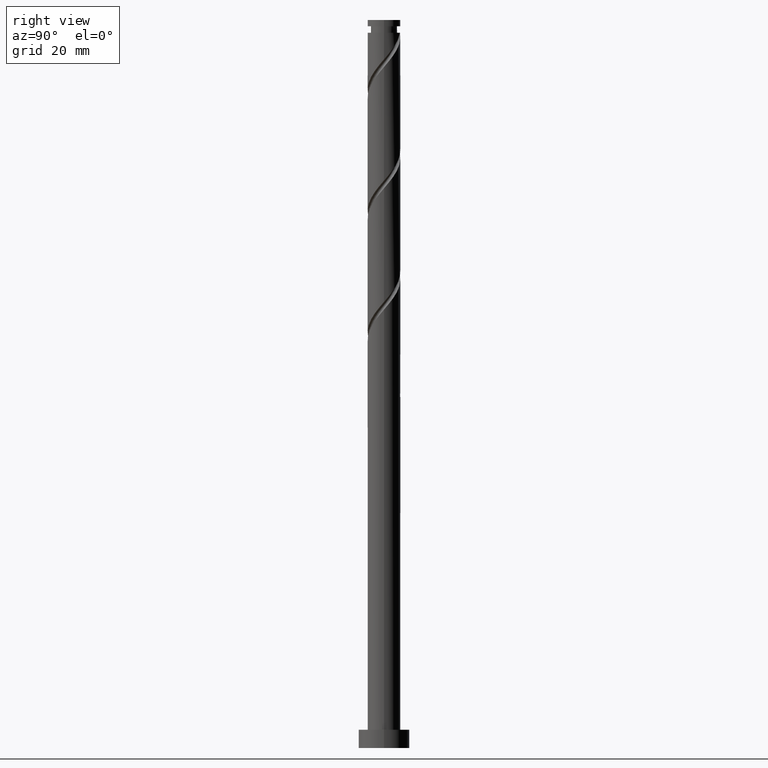
[diagram: clean part render]
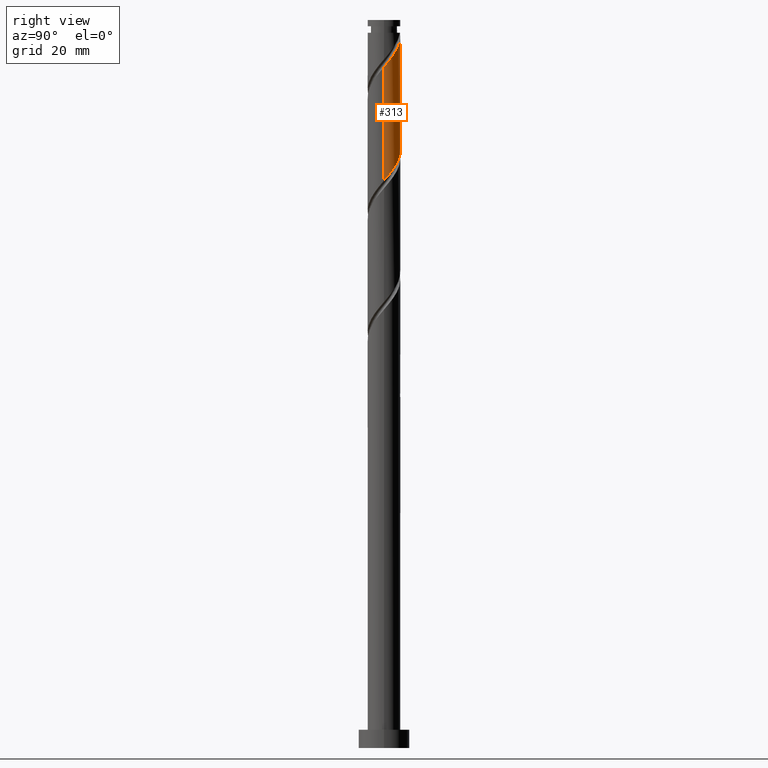
[diagram: same view with one face highlighted and labeled with its STEP entity id]
A machine part, right view. The second image highlights one B-rep face of the part: STEP entity #313.
In plain terms, the highlighted cylindrical surface (edge-blend (fillet) strip) has radius 4.5 mm, axis along (-0, -0, -1).
Its self-contained STEP definition (entity closure, byte-faithful):
#8 = CARTESIAN_POINT ( 'NONE',  ( 4.500000000000000000, 6.474988664087530280E-15, 155.8976470293426360 ) ) ;
#12 = VERTEX_POINT ( 'NONE', #1205 ) ;
#24 = CARTESIAN_POINT ( 'NONE',  ( -4.499999999999988454, 0.000000000000000000, 196.5007470407992685 ) ) ;
#26 = CARTESIAN_POINT ( 'NONE',  ( 4.078721232902287497, 1.991234240796970090, 158.3063025963548114 ) ) ;
#33 = CARTESIAN_POINT ( 'NONE',  ( -4.500000000000001776, -2.841219044287830793E-15, 172.5643136960093500 ) ) ;
#38 = CARTESIAN_POINT ( 'NONE',  ( 2.980515957282635853, 3.371427683991394364, 160.3896359296881258 ) ) ;
#59 = CARTESIAN_POINT ( 'NONE',  ( -4.027963365409944707, 2.006367645003127365, 170.1118581519103827 ) ) ;
#74 = CARTESIAN_POINT ( 'NONE',  ( 3.763820053866749227, 2.536659082249878683, 190.2507470407992685 ) ) ;
#76 = CIRCLE ( 'NONE', #1070, 4.499999999999988454 ) ;
#87 = ORIENTED_EDGE ( 'NONE', *, *, #367, .T. ) ;
#91 = CARTESIAN_POINT ( 'NONE',  ( 4.410000000000008136, 0.8954886933959588236, 188.1674137074659825 ) ) ;
#124 = ORIENTED_EDGE ( 'NONE', *, *, #281, .F. ) ;
#126 = FACE_OUTER_BOUND ( 'NONE', #395, .T. ) ;
#138 = CARTESIAN_POINT ( 'NONE',  ( 1.991234240796978749, 4.078721232902290161, 193.0285248185769831 ) ) ;
#143 = CARTESIAN_POINT ( 'NONE',  ( 4.491502422459638488, 0.2764163328011046139, 156.2229692630214686 ) ) ;
#151 = CARTESIAN_POINT ( 'NONE',  ( 4.500000000000006217, -1.525286013249246193E-15, 187.1038470522558725 ) ) ;
#160 = CARTESIAN_POINT ( 'NONE',  ( 3.424372832315393911, 2.979035314116047495, 159.6951914852437255 ) ) ;
#176 = ORIENTED_EDGE ( 'NONE', *, *, #778, .F. ) ;
#196 = CARTESIAN_POINT ( 'NONE',  ( -1.429484042717364511, 4.266916377387353521, 165.9451914852436687 ) ) ;
#210 = VERTEX_POINT ( 'NONE', #1565 ) ;
#264 = CARTESIAN_POINT ( 'NONE',  ( 0.2764163328011116083, 4.491502422459643817, 195.1118581519104396 ) ) ;
#281 = EDGE_CURVE ( 'NONE', #351, #12, #309, .T. ) ;
#309 =( BOUNDED_CURVE ( )  B_SPLINE_CURVE ( 2, ( #1053, #763, #91, #1193, #490, #74, #1099, #666, #688, #138, #1217, #1079, #264, #1517, #390 ),
 .UNSPECIFIED., .F., .T. ) 
 B_SPLINE_CURVE_WITH_KNOTS ( ( 3, 2, 2, 2, 2, 2, 2, 3 ),
 ( 0.6795317669814462391, 0.6875000000000000000, 0.6979166666666667407, 0.7083333333333332593, 0.7187500000000000000, 0.7291666666666667407, 0.7395833333333332593, 0.7500000000000000000 ),
 .UNSPECIFIED. ) 
 CURVE ( )  GEOMETRIC_REPRESENTATION_ITEM ( )  RATIONAL_B_SPLINE_CURVE ( ( 0.9062941362546460544, 0.9031415850403503587, 0.9090909090909256030, 0.9013135103398440817, 0.9090909090909256030, 0.9013135103398440817, 0.9090909090909256030, 0.9013135103398440817, 0.9090909090909256030, 0.9013135103398440817, 0.9090909090909256030, 0.9013135103398440817, 0.9090909090909256030, 0.9013135103398440817, 0.9090909090909256030 ) ) 
 REPRESENTATION_ITEM ( '' )  );
#313 = ADVANCED_FACE ( 'NONE', ( #126 ), #1490, .T. ) ;
#325 = CARTESIAN_POINT ( 'NONE',  ( -2.979035314116047939, 3.424372832315392579, 168.0285248185770399 ) ) ;
#351 = VERTEX_POINT ( 'NONE', #151 ) ;
#367 = EDGE_CURVE ( 'NONE', #351, #210, #1069, .T. ) ;
#390 = CARTESIAN_POINT ( 'NONE',  ( -0.8954886933959318451, 4.409999999999990372, 196.5007470407992400 ) ) ;
#395 = EDGE_LOOP ( 'NONE', ( #124, #87, #176, #536, #1488 ) ) ;
#419 = CARTESIAN_POINT ( 'NONE',  ( -4.500000000000000000, 0.000000000000000000, 200.0000000000000000 ) ) ;
#439 = CARTESIAN_POINT ( 'NONE',  ( 0.8954886933959598228, 4.409999999999999254, 163.1674137074659541 ) ) ;
#490 = CARTESIAN_POINT ( 'NONE',  ( 4.027963365409952701, 2.006367645003126920, 189.5563025963548114 ) ) ;
#536 = ORIENTED_EDGE ( 'NONE', *, *, #910, .F. ) ;
#542 = CARTESIAN_POINT ( 'NONE',  ( 0.000000000000000000, 0.000000000000000000, 200.0000000000000000 ) ) ;
#553 = CARTESIAN_POINT ( 'NONE',  ( 2.006367645003129585, 4.027963365409942931, 161.7785248185770683 ) ) ;
#601 = CARTESIAN_POINT ( 'NONE',  ( -4.409999999999999254, 0.8954886933959590456, 171.5007470407992685 ) ) ;
#643 = CARTESIAN_POINT ( 'NONE',  ( 0.000000000000000000, 0.000000000000000000, 196.5007470407992685 ) ) ;
#666 = CARTESIAN_POINT ( 'NONE',  ( 2.979035314116056821, 3.424372832315393467, 191.6396359296881258 ) ) ;
#674 = AXIS2_PLACEMENT_3D ( 'NONE', #542, #1227, #1614 ) ;
#688 = CARTESIAN_POINT ( 'NONE',  ( 2.485134777456516453, 3.751547032608842702, 192.3340803741326113 ) ) ;
#701 = VECTOR ( 'NONE', #1344, 1000.000000000000000 ) ;
#733 = CARTESIAN_POINT ( 'NONE',  ( -4.500000000000000888, 0.4522670168666450552, 172.0308873268200784 ) ) ;
#745 = DIRECTION ( 'NONE',  ( -0.000000000000000000, -0.000000000000000000, -1.000000000000000000 ) ) ;
#763 = CARTESIAN_POINT ( 'NONE',  ( 4.500000000000006217, 0.4522670168666431678, 187.6372734214451441 ) ) ;
#778 = EDGE_CURVE ( 'NONE', #1038, #210, #1063, .T. ) ;
#867 = CARTESIAN_POINT ( 'NONE',  ( -2.485134777456511124, 3.751547032608838261, 167.3340803741325828 ) ) ;
#910 = EDGE_CURVE ( 'NONE', #952, #1038, #1424, .T. ) ;
#931 = DIRECTION ( 'NONE',  ( -1.000000000000000000, 0.000000000000000000, 0.000000000000000000 ) ) ;
#952 = VERTEX_POINT ( 'NONE', #24 ) ;
#955 = CARTESIAN_POINT ( 'NONE',  ( 1.476076207756378933, 4.292106676953146405, 162.4729692630215254 ) ) ;
#956 = VECTOR ( 'NONE', #745, 1000.000000000000000 ) ;
#977 = CARTESIAN_POINT ( 'NONE',  ( 3.751547032608838261, 2.485134777456509347, 159.0007470407992400 ) ) ;
#1008 = CARTESIAN_POINT ( 'NONE',  ( -3.763820053866741677, 2.536659082249878683, 169.4174137074659541 ) ) ;
#1038 = VERTEX_POINT ( 'NONE', #33 ) ;
#1053 = CARTESIAN_POINT ( 'NONE',  ( 4.500000000000006217, -1.525286013249246193E-15, 187.1038470522558725 ) ) ;
#1058 = DIRECTION ( 'NONE',  ( -0.000000000000000000, -0.000000000000000000, -1.000000000000000000 ) ) ;
#1063 =( BOUNDED_CURVE ( )  B_SPLINE_CURVE ( 2, ( #1541, #733, #601, #1271, #59, #1008, #1548, #325, #867, #1419, #196, #1278, #1657, #1520, #439, #955, #553, #1356, #38, #160, #977, #26, #1249, #1101, #143, #1220, #8 ),
 .UNSPECIFIED., .F., .T. ) 
 B_SPLINE_CURVE_WITH_KNOTS ( ( 3, 2, 2, 2, 2, 2, 2, 2, 2, 2, 2, 2, 2, 3 ),
 ( 0.4295317669814462391, 0.4375000000000000000, 0.4479166666666666852, 0.4583333333333333148, 0.4687500000000000000, 0.4791666666666666852, 0.4895833333333333148, 0.5000000000000000000, 0.5104166666666666297, 0.5208333333333333703, 0.5312500000000000000, 0.5416666666666666297, 0.5520833333333333703, 0.5545317669814462391 ),
 .UNSPECIFIED. ) 
 CURVE ( )  GEOMETRIC_REPRESENTATION_ITEM ( )  RATIONAL_B_SPLINE_CURVE ( ( 0.9062941362546398372, 0.9031415850403440304, 0.9090909090909194967, 0.9013135103398377534, 0.9090909090909194967, 0.9013135103398377534, 0.9090909090909194967, 0.9013135103398377534, 0.9090909090909194967, 0.9013135103398377534, 0.9090909090909194967, 0.9013135103398377534, 0.9090909090909194967, 0.9013135103398377534, 0.9090909090909194967, 0.9013135103398377534, 0.9090909090909194967, 0.9013135103398377534, 0.9090909090909194967, 0.9013135103398377534, 0.9090909090909194967, 0.9013135103398377534, 0.9090909090909194967, 0.9013135103398377534, 0.9090909090909194967, 0.9072628343904132198, 0.9062941362546398372 ) ) 
 REPRESENTATION_ITEM ( '' )  );
#1069 = LINE ( 'NONE', #1207, #701 ) ;
#1070 = AXIS2_PLACEMENT_3D ( 'NONE', #643, #1058, #931 ) ;
#1079 = CARTESIAN_POINT ( 'NONE',  ( 0.8677338446377617087, 4.455111521872428426, 194.4174137074660109 ) ) ;
#1099 = CARTESIAN_POINT ( 'NONE',  ( 3.371427683991403690, 2.980515957282635409, 190.9451914852437540 ) ) ;
#1101 = CARTESIAN_POINT ( 'NONE',  ( 4.455111521872423985, 0.8677338446377541592, 156.9174137074659541 ) ) ;
#1136 = EDGE_CURVE ( 'NONE', #952, #12, #76, .T. ) ;
#1193 = CARTESIAN_POINT ( 'NONE',  ( 4.292106676953157063, 1.476076207756374714, 188.8618581519103543 ) ) ;
#1205 = CARTESIAN_POINT ( 'NONE',  ( -0.8954886933959318451, 4.409999999999990372, 196.5007470407992400 ) ) ;
#1207 = CARTESIAN_POINT ( 'NONE',  ( 4.500000000000000000, 5.510910596163088569E-16, 200.0000000000000000 ) ) ;
#1217 = CARTESIAN_POINT ( 'NONE',  ( 1.429484042717370507, 4.266916377387359738, 193.7229692630215538 ) ) ;
#1220 = CARTESIAN_POINT ( 'NONE',  ( 4.500000000000000000, 0.1383387824595321280, 156.0608107173707708 ) ) ;
#1227 = DIRECTION ( 'NONE',  ( -0.000000000000000000, -0.000000000000000000, -1.000000000000000000 ) ) ;
#1249 = CARTESIAN_POINT ( 'NONE',  ( 4.266916377387353521, 1.429484042717362069, 157.6118581519103543 ) ) ;
#1271 = CARTESIAN_POINT ( 'NONE',  ( -4.292106676953148181, 1.476076207756375158, 170.8063025963548114 ) ) ;
#1278 = CARTESIAN_POINT ( 'NONE',  ( -0.8677338446377570458, 4.455111521872423097, 165.2507470407993253 ) ) ;
#1344 = DIRECTION ( 'NONE',  ( -0.000000000000000000, -0.000000000000000000, -1.000000000000000000 ) ) ;
#1356 = CARTESIAN_POINT ( 'NONE',  ( 2.536659082249880903, 3.763820053866741677, 161.0840803741325828 ) ) ;
#1419 = CARTESIAN_POINT ( 'NONE',  ( -1.991234240796973642, 4.078721232902286609, 166.6396359296881542 ) ) ;
#1424 = LINE ( 'NONE', #419, #956 ) ;
#1488 = ORIENTED_EDGE ( 'NONE', *, *, #1136, .T. ) ;
#1490 = CYLINDRICAL_SURFACE ( 'NONE', #674, 4.500000000000000000 ) ;
#1517 = CARTESIAN_POINT ( 'NONE',  ( -0.3149011790355383811, 4.527893323046858320, 195.8063025963548114 ) ) ;
#1520 = CARTESIAN_POINT ( 'NONE',  ( 0.3149011790355433216, 4.527893323046852991, 163.8618581519104112 ) ) ;
#1541 = CARTESIAN_POINT ( 'NONE',  ( -4.500000000000001776, -2.841219044287830793E-15, 172.5643136960093500 ) ) ;
#1548 = CARTESIAN_POINT ( 'NONE',  ( -3.371427683991394808, 2.980515957282634076, 168.7229692630214686 ) ) ;
#1565 = CARTESIAN_POINT ( 'NONE',  ( 4.500000000000000000, 6.474988664087530280E-15, 155.8976470293426360 ) ) ;
#1614 = DIRECTION ( 'NONE',  ( -1.000000000000000000, 0.000000000000000000, 0.000000000000000000 ) ) ;
#1657 = CARTESIAN_POINT ( 'NONE',  ( -0.2764163328011065568, 4.491502422459638488, 164.5563025963548682 ) ) ;